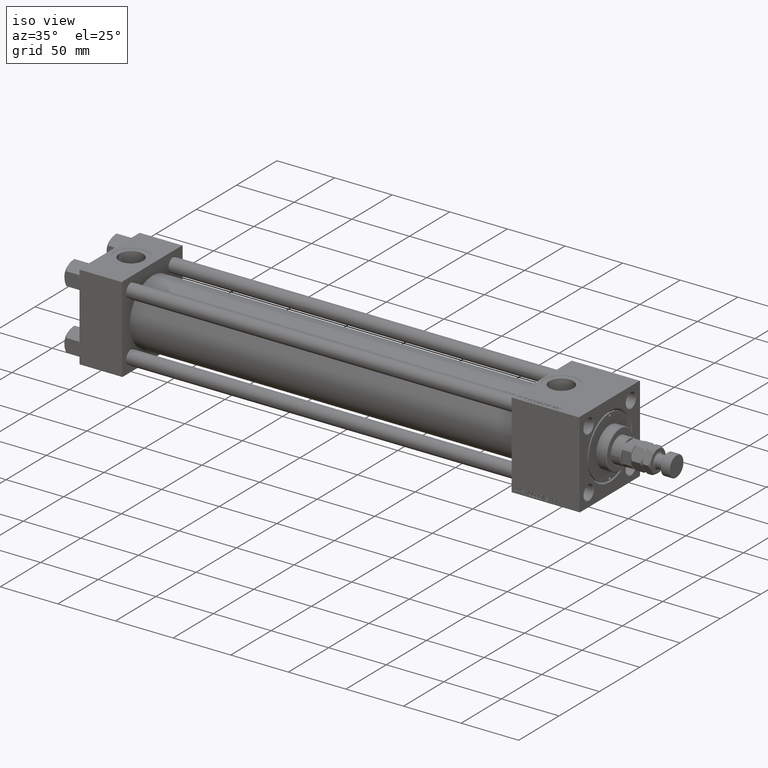
[diagram: clean part render]
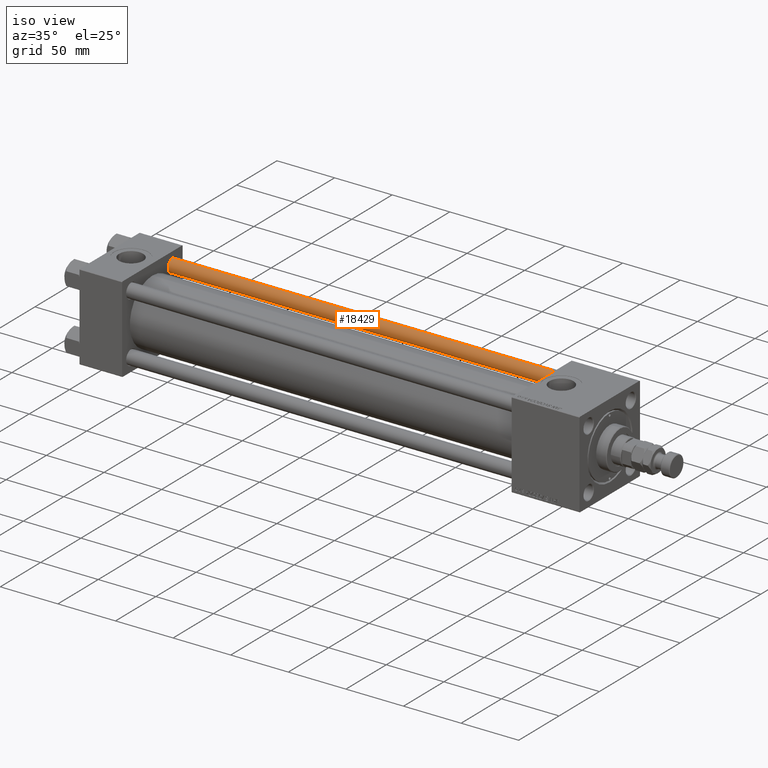
[diagram: same view with one face highlighted and labeled with its STEP entity id]
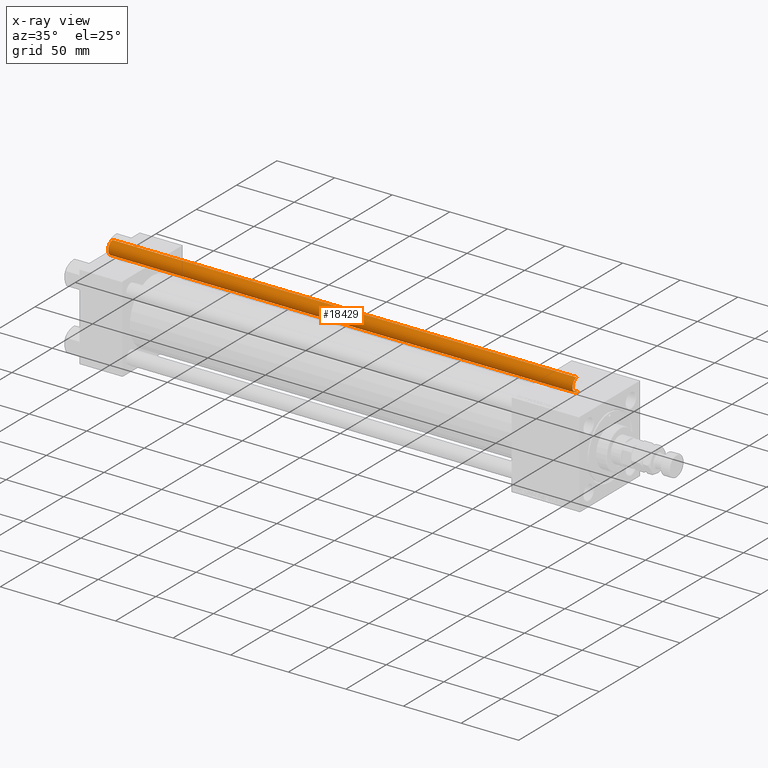
[diagram: x-ray of the same camera — body ghosted, the highlighted face saturated]
A machine part, iso view. The second image highlights one B-rep face of the part: STEP entity #18429.
The next image is the same camera in x-ray: the body ghosted, the highlighted face saturated — about 0% of this face is hidden behind the body in this view.
In plain terms, the highlighted cylindrical surface (edge-blend (fillet) strip) has radius 6 mm, axis along (-1, 0, 0).
Its self-contained STEP definition (entity closure, byte-faithful):
#1632 = DIRECTION ( 'NONE',  ( -0.000000000000000000, -0.000000000000000000, -1.000000000000000000 ) ) ;
#3339 = VERTEX_POINT ( 'NONE', #28881 ) ;
#6256 = CARTESIAN_POINT ( 'NONE',  ( 6.000000000000000888, 7.347880794884120722E-16, 404.0000000000000000 ) ) ;
#6443 = CIRCLE ( 'NONE', #32609, 6.000000000000000888 ) ;
#6881 = ORIENTED_EDGE ( 'NONE', *, *, #12179, .T. ) ;
#8576 = ORIENTED_EDGE ( 'NONE', *, *, #27799, .F. ) ;
#9720 = DIRECTION ( 'NONE',  ( 1.000000000000000000, 0.000000000000000000, 0.000000000000000000 ) ) ;
#11130 = DIRECTION ( 'NONE',  ( -0.000000000000000000, -0.000000000000000000, 1.000000000000000000 ) ) ;
#11297 = VECTOR ( 'NONE', #1632, 1000.000000000000000 ) ;
#12179 = EDGE_CURVE ( 'NONE', #3339, #12855, #29096, .T. ) ;
#12855 = VERTEX_POINT ( 'NONE', #19591 ) ;
#12948 = EDGE_CURVE ( 'NONE', #27240, #39303, #6443, .T. ) ;
#13031 = DIRECTION ( 'NONE',  ( 1.000000000000000000, 0.000000000000000000, 0.000000000000000000 ) ) ;
#14081 = CARTESIAN_POINT ( 'NONE',  ( 0.000000000000000000, 0.000000000000000000, 403.5000000000000000 ) ) ;
#17142 = LINE ( 'NONE', #42552, #21203 ) ;
#17411 = DIRECTION ( 'NONE',  ( -0.000000000000000000, -0.000000000000000000, -1.000000000000000000 ) ) ;
#18273 = CYLINDRICAL_SURFACE ( 'NONE', #49348, 6.000000000000000888 ) ;
#18429 = ADVANCED_FACE ( 'NONE', ( #47249 ), #18273, .T. ) ;
#19591 = CARTESIAN_POINT ( 'NONE',  ( -6.000000000000000888, 0.000000000000000000, 403.5000000000000000 ) ) ;
#21203 = VECTOR ( 'NONE', #17411, 1000.000000000000000 ) ;
#22106 = CARTESIAN_POINT ( 'NONE',  ( 0.000000000000000000, 0.000000000000000000, 404.0000000000000000 ) ) ;
#27240 = VERTEX_POINT ( 'NONE', #31695 ) ;
#27799 = EDGE_CURVE ( 'NONE', #3339, #39303, #51377, .T. ) ;
#28881 = CARTESIAN_POINT ( 'NONE',  ( 6.000000000000000888, 7.347880794884120722E-16, 403.5000000000000000 ) ) ;
#28988 = ORIENTED_EDGE ( 'NONE', *, *, #12948, .T. ) ;
#29096 = CIRCLE ( 'NONE', #29975, 6.000000000000000888 ) ;
#29975 = AXIS2_PLACEMENT_3D ( 'NONE', #14081, #43590, #9720 ) ;
#31097 = DIRECTION ( 'NONE',  ( -0.000000000000000000, -0.000000000000000000, -1.000000000000000000 ) ) ;
#31695 = CARTESIAN_POINT ( 'NONE',  ( -6.000000000000000888, 0.000000000000000000, 0.5000000000000559552 ) ) ;
#32609 = AXIS2_PLACEMENT_3D ( 'NONE', #48579, #11130, #13031 ) ;
#36183 = EDGE_LOOP ( 'NONE', ( #8576, #6881, #40231, #28988 ) ) ;
#39004 = EDGE_CURVE ( 'NONE', #12855, #27240, #17142, .T. ) ;
#39303 = VERTEX_POINT ( 'NONE', #43283 ) ;
#39843 = DIRECTION ( 'NONE',  ( -1.000000000000000000, 0.000000000000000000, 0.000000000000000000 ) ) ;
#40231 = ORIENTED_EDGE ( 'NONE', *, *, #39004, .T. ) ;
#42552 = CARTESIAN_POINT ( 'NONE',  ( -6.000000000000000888, 0.000000000000000000, 404.0000000000000000 ) ) ;
#43283 = CARTESIAN_POINT ( 'NONE',  ( 6.000000000000000888, 7.347880794884120722E-16, 0.5000000000000559552 ) ) ;
#43590 = DIRECTION ( 'NONE',  ( 0.000000000000000000, 0.000000000000000000, -1.000000000000000000 ) ) ;
#47249 = FACE_OUTER_BOUND ( 'NONE', #36183, .T. ) ;
#48579 = CARTESIAN_POINT ( 'NONE',  ( 0.000000000000000000, 0.000000000000000000, 0.5000000000000559552 ) ) ;
#49348 = AXIS2_PLACEMENT_3D ( 'NONE', #22106, #31097, #39843 ) ;
#51377 = LINE ( 'NONE', #6256, #11297 ) ;